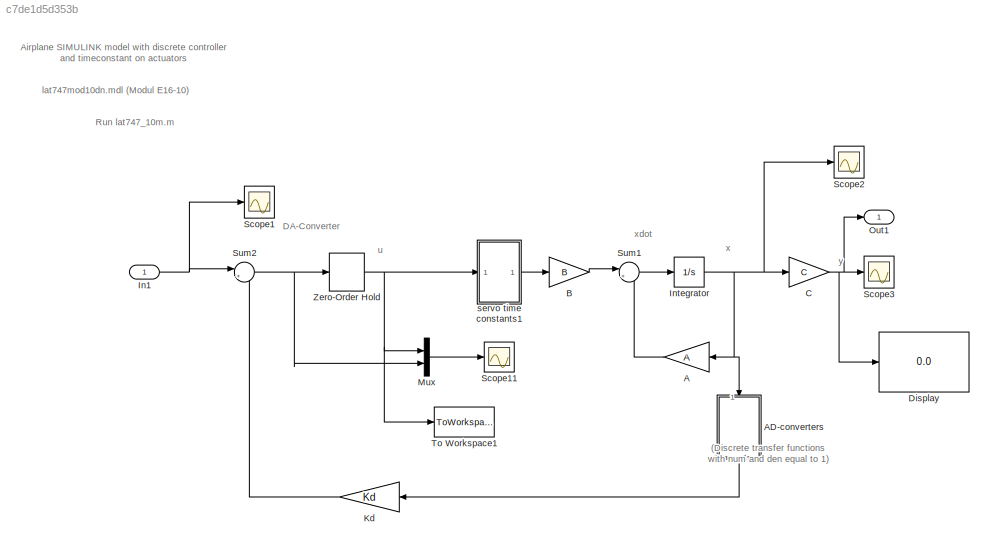
MODEL mdl_c7de1d5d353b
KIND model
CONFIG AbsTol = auto
CONFIG EnableMultiTasking = off
CONFIG FixedStep = T
CONFIG MaxStep = auto
CONFIG MinStep = auto
CONFIG RelTol = 1e-6
CONFIG SampleTimeConstraint = Unconstrained
CONFIG SolverName = ode5
CONFIG StartTime = 0.0
CONFIG StopTime = 50
BLOCK [Gain] A
  Gain = A
  Multiplication = Matrix(K*u)
  NameLocation = top
  OutDataTypeStr = Inherit: Same as input
  ParamDataTypeStr = Inherit: Same as input
  SaturateOnIntegerOverflow = on
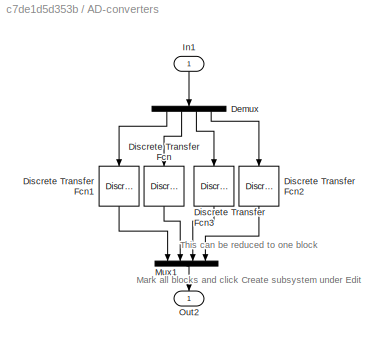
BLOCK [SubSystem] AD-converters
  NameLocation = right
  Ports = [1, 1]
  RequestExecContextInheritance = off
BLOCK [Demux] AD-converters/Demux
  DisplayOption = none
  NameLocation = left
  Ports = [1, 4]
BLOCK [DiscreteTransferFcn] AD-converters/Discrete Transfer Fcn
  Denominator = 1
  InputPortMap = u0
  NameLocation = left
  Numerator = 1
  Ports = [1, 1]
  SampleTime = T
BLOCK [DiscreteTransferFcn] AD-converters/Discrete Transfer Fcn1
  Denominator = 1
  InputPortMap = u0
  NameLocation = left
  Numerator = 1
  Ports = [1, 1]
  SampleTime = T
BLOCK [DiscreteTransferFcn] AD-converters/Discrete Transfer Fcn2
  Denominator = 1
  InputPortMap = u0
  NameLocation = left
  Numerator = 1
  Ports = [1, 1]
  SampleTime = T
BLOCK [DiscreteTransferFcn] AD-converters/Discrete Transfer Fcn3
  Denominator = 1
  InputPortMap = u0
  NameLocation = left
  Numerator = 1
  Ports = [1, 1]
  SampleTime = T
BLOCK [Inport] AD-converters/In1
  NameLocation = right
BLOCK [Mux] AD-converters/Mux1
  DisplayOption = bar
  NameLocation = left
  Ports = [4, 1]
BLOCK [Outport] AD-converters/Out2
  NameLocation = right
BLOCK [Gain] B
  Gain = B
  Multiplication = Matrix(K*u)
  OutDataTypeStr = Inherit: Same as input
  ParamDataTypeStr = Inherit: Same as input
  SaturateOnIntegerOverflow = on
BLOCK [Gain] C
  Gain = C
  Multiplication = Matrix(K*u)
  OutDataTypeStr = Inherit: Same as input
  ParamDataTypeStr = Inherit: Same as input
  SaturateOnIntegerOverflow = on
BLOCK [Display] Display
  Decimation = 1
  Ports = [1]
BLOCK [Inport] In1
  PortDimensions = 2
BLOCK [Integrator] Integrator
  InitialCondition = 0%[-.050 .02 -.1 .04]'
  Ports = [1, 1]
BLOCK [Gain] Kd
  Gain = Kd
  Multiplication = Matrix(K*u)
  NameLocation = top
  OutDataTypeStr = Inherit: Same as input
  ParamDataTypeStr = Inherit: Same as input
  SampleTime = T
  SaturateOnIntegerOverflow = on
BLOCK [Mux] Mux
  DisplayOption = bar
  Inputs = 2
  Ports = [2, 1]
BLOCK [Outport] Out1
BLOCK [Scope] Scope1
  Floating = off
  NumInputPorts = 1
  Ports = [1]
  ScopeSpecificationString = Simulink.scopes.TimeScopeBlockCfg('CurrentConfiguration', extmgr.ConfigurationSet(extmgr.Configuration('Core','General UI',true),extmgr.Configuration('Core','Source UI',true),extmgr.Configuration('Sources','WiredSimulink',true,'DataLoggingVariableName','ScopeData1','DataLoggingSaveFormat','StructureWithTime','DataLoggingLimitDataPoints',true,'DataLoggingDecimation','1','DataLoggingDecimateData',tr...<+911ch>
BLOCK [Scope] Scope11
  Floating = off
  NumInputPorts = 1
  Ports = [1]
  ScopeSpecificationString = Simulink.scopes.TimeScopeBlockCfg('CurrentConfiguration', extmgr.ConfigurationSet(extmgr.Configuration('Core','General UI',true),extmgr.Configuration('Core','Source UI',true),extmgr.Configuration('Sources','WiredSimulink',true,'DataLoggingSaveFormat','StructureWithTime','DataLoggingDecimation','1','DataLoggingDecimateData',true),extmgr.Configuration('Visuals','Time Domain',true,'DisplayPropertyDef...<+837ch>
BLOCK [Scope] Scope2
  Floating = off
  NumInputPorts = 1
  Ports = [1]
  ScopeSpecificationString = Simulink.scopes.TimeScopeBlockCfg('CurrentConfiguration', extmgr.ConfigurationSet(extmgr.Configuration('Core','General UI',true),extmgr.Configuration('Core','Source UI',true),extmgr.Configuration('Sources','WiredSimulink',true,'DataLoggingSaveFormat','StructureWithTime','DataLoggingLimitDataPoints',true,'DataLoggingDecimation','1','DataLoggingDecimateData',true),extmgr.Configuration('Visuals','Tim...<+872ch>
BLOCK [Scope] Scope3
  Floating = off
  NumInputPorts = 1
  Ports = [1]
  ScopeSpecificationString = Simulink.scopes.TimeScopeBlockCfg('CurrentConfiguration', extmgr.ConfigurationSet(extmgr.Configuration('Core','General UI',true),extmgr.Configuration('Core','Source UI',true),extmgr.Configuration('Sources','WiredSimulink',true,'DataLoggingVariableName','ScopeData2','DataLoggingSaveFormat','StructureWithTime','DataLoggingLimitDataPoints',true,'DataLoggingDecimation','1','DataLoggingDecimateData',tr...<+910ch>
BLOCK [Sum] Sum1
  InputSameDT = on
  Inputs = |++
  OutDataTypeStr = Inherit: Same as first input
  Ports = [2, 1]
  SaturateOnIntegerOverflow = on
BLOCK [Sum] Sum2
  InputSameDT = on
  Inputs = |+-
  OutDataTypeStr = Inherit: Same as first input
  Ports = [2, 1]
  SampleTime = T
  SaturateOnIntegerOverflow = on
BLOCK [ToWorkspace] To Workspace1
  MaxDataPoints = inf
  Ports = [1]
  VariableName = uu
BLOCK [ZeroOrderHold] Zero-Order Hold
  SampleTime = T
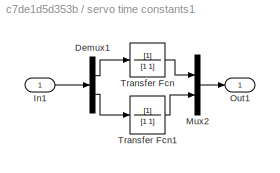
BLOCK [SubSystem] servo time constants1
  Ports = [1, 1]
  RequestExecContextInheritance = off
BLOCK [Demux] servo time constants1/Demux1
  DisplayOption = none
  Outputs = 2
  Ports = [1, 2]
BLOCK [Inport] servo time constants1/In1
BLOCK [Mux] servo time constants1/Mux2
  DisplayOption = bar
  Inputs = 2
  Ports = [2, 1]
BLOCK [Outport] servo time constants1/Out1
BLOCK [TransferFcn] servo time constants1/Transfer Fcn
  Denominator = [1 1]
BLOCK [TransferFcn] servo time constants1/Transfer Fcn1
  Denominator = [1 1]
ANNOTATION (root): (Discrete transfer functions with num and den equal to 1)
ANNOTATION (root): Airplane SIMULINK model with discrete controller and timeconstant on actuators
ANNOTATION (root): DA-Converter
ANNOTATION (root): Run lat747_10m.m
ANNOTATION (root): lat747mod10dn.mdl (Modul E16-10)
ANNOTATION (root): u
ANNOTATION (root): x
ANNOTATION (root): xdot
ANNOTATION (root): y
ANNOTATION AD-converters: This can be reduced to one block Mark all blocks and click Create subsystem under Edit
LINE A:1 -> Sum1:2
LINE AD-converters/Demux:1 -> AD-converters/Discrete Transfer Fcn1:1
LINE AD-converters/Demux:2 -> AD-converters/Discrete Transfer Fcn:1
LINE AD-converters/Demux:3 -> AD-converters/Discrete Transfer Fcn3:1
LINE AD-converters/Demux:4 -> AD-converters/Discrete Transfer Fcn2:1
LINE AD-converters/Discrete Transfer Fcn1:1 -> AD-converters/Mux1:1
LINE AD-converters/Discrete Transfer Fcn2:1 -> AD-converters/Mux1:4
LINE AD-converters/Discrete Transfer Fcn3:1 -> AD-converters/Mux1:3
LINE AD-converters/Discrete Transfer Fcn:1 -> AD-converters/Mux1:2
LINE AD-converters/In1:1 -> AD-converters/Demux:1
LINE AD-converters/Mux1:1 -> AD-converters/Out2:1
LINE AD-converters:1 -> Kd:1
LINE B:1 -> Sum1:1
NET C:1 -> Display:1, Out1:1, Scope3:1
NET In1:1 -> Scope1:1, Sum2:1
NET Integrator:1 -> A:1, AD-converters:1, C:1, Scope2:1
LINE Kd:1 -> Sum2:2
LINE Mux:1 -> Scope11:1
LINE Sum1:1 -> Integrator:1
NET Sum2:1 -> Mux:2, Zero-Order Hold:1
NET Zero-Order Hold:1 -> Mux:1, To Workspace1:1, servo time constants1:1
LINE servo time constants1/Demux1:1 -> servo time constants1/Transfer Fcn:1
LINE servo time constants1/Demux1:2 -> servo time constants1/Transfer Fcn1:1
LINE servo time constants1/In1:1 -> servo time constants1/Demux1:1
LINE servo time constants1/Mux2:1 -> servo time constants1/Out1:1
LINE servo time constants1/Transfer Fcn1:1 -> servo time constants1/Mux2:2
LINE servo time constants1/Transfer Fcn:1 -> servo time constants1/Mux2:1
LINE servo time constants1:1 -> B:1
note: NET lines group one-source signal fan-out (src -> all destinations, sorted); 1:1 wires keep LINE
